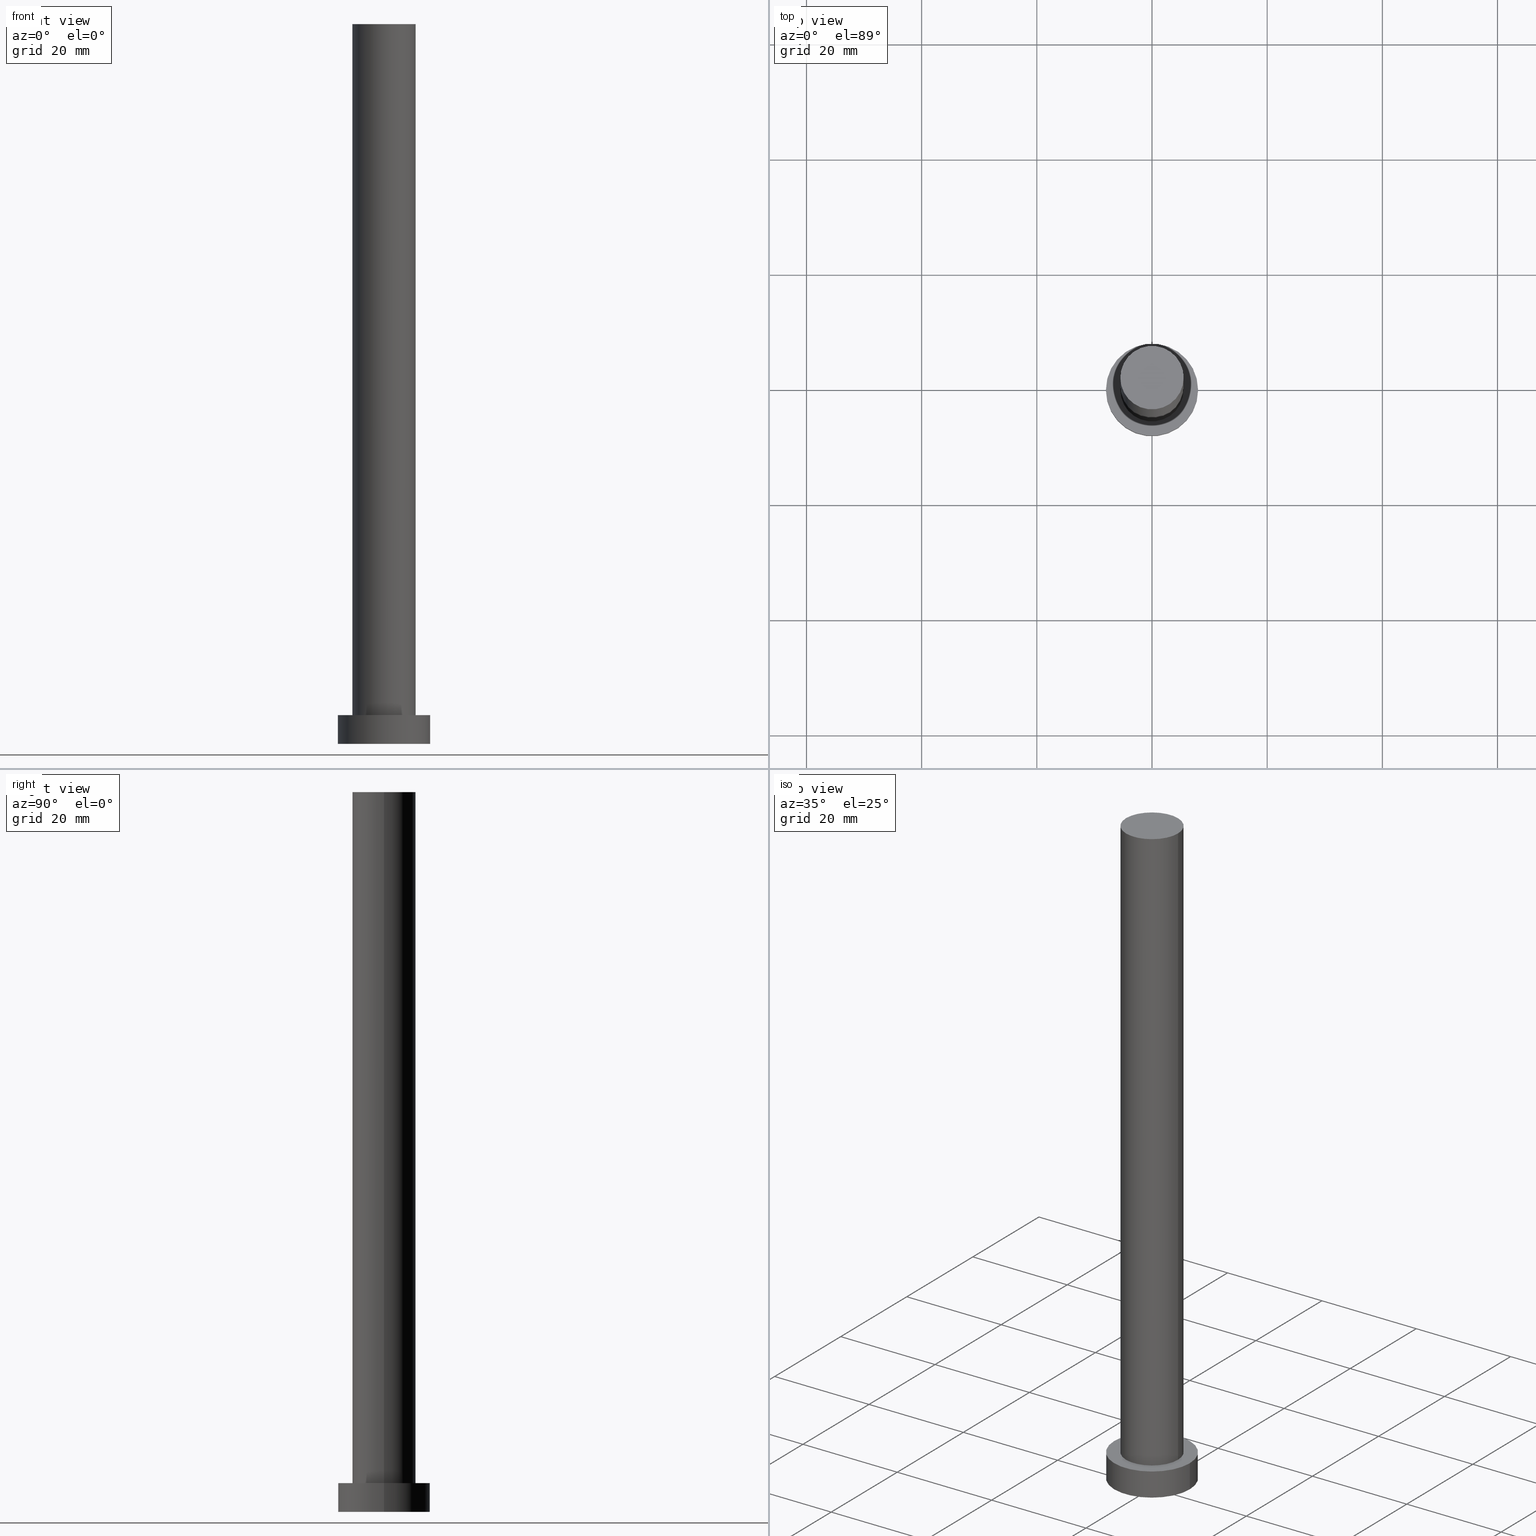
[diagram: canonical four-view strip — front | top / right | iso, engineering-drawing reading convention]
A machine part, canonical four-view strip (front | top / right | iso — engineering-drawing reading convention). The complete STEP part file that produces these views, byte-faithful:
ISO-10303-21;
HEADER;
FILE_DESCRIPTION (( 'STEP AP203' ),
    '1' );
FILE_NAME ('b8af.STEP',
    '2023-02-13T11:10:48',
    ( '' ),
    ( '' ),
    'SwSTEP 2.0',
    'SolidWorks 2019',
    '' );
FILE_SCHEMA (( 'CONFIG_CONTROL_DESIGN' ));
ENDSEC;

DATA;
#1 = DIRECTION ( 'NONE',  ( -0.000000000000000000, -0.000000000000000000, -1.000000000000000000 ) ) ;
#2 = PRODUCT_DEFINITION_SHAPE ( 'NONE', 'NONE',  #31 ) ;
#3 = EDGE_CURVE ( 'NONE', #204, #247, #64, .T. ) ;
#4 = VERTEX_POINT ( 'NONE', #14 ) ;
#5 = LOCAL_TIME ( 12, 10, 48.00000000000000000, #228 ) ;
#6 = PERSON_AND_ORGANIZATION ( #89, #128 ) ;
#7 = DIRECTION ( 'NONE',  ( 0.000000000000000000, 0.000000000000000000, 1.000000000000000000 ) ) ;
#8 = COORDINATED_UNIVERSAL_TIME_OFFSET ( 1, 0, .AHEAD. ) ;
#9 = CIRCLE ( 'NONE', #55, 8.000000000000000000 ) ;
#10 = APPROVAL_PERSON_ORGANIZATION ( #96, #163, #70 ) ;
#11 = EDGE_CURVE ( 'NONE', #83, #214, #109, .T. ) ;
#12 = CARTESIAN_POINT ( 'NONE',  ( -8.000000000000000000, 0.000000000000000000, 0.000000000000000000 ) ) ;
#13 = VERTEX_POINT ( 'NONE', #12 ) ;
#14 = CARTESIAN_POINT ( 'NONE',  ( 5.500000000000000000, 6.735557395310442023E-16, 125.0000000000000000 ) ) ;
#15 = DIRECTION ( 'NONE',  ( 1.000000000000000000, 0.000000000000000000, 0.000000000000000000 ) ) ;
#16 = ADVANCED_FACE ( 'NONE', ( #91 ), #52, .T. ) ;
#17 = DIRECTION ( 'NONE',  ( -0.000000000000000000, -0.000000000000000000, -1.000000000000000000 ) ) ;
#18 = AXIS2_PLACEMENT_3D ( 'NONE', #227, #7, #226 ) ;
#19 = EDGE_LOOP ( 'NONE', ( #187, #206, #189, #107 ) ) ;
#20 = CARTESIAN_POINT ( 'NONE',  ( 0.000000000000000000, 0.000000000000000000, 5.000000000000000000 ) ) ;
#21 =( LENGTH_UNIT ( ) NAMED_UNIT ( * ) SI_UNIT ( .MILLI., .METRE. ) );
#22 = FACE_BOUND ( 'NONE', #129, .T. ) ;
#23 = AXIS2_PLACEMENT_3D ( 'NONE', #112, #188, #38 ) ;
#24 = CC_DESIGN_DATE_AND_TIME_ASSIGNMENT ( #29, #201, ( #31 ) ) ;
#25 = ORIENTED_EDGE ( 'NONE', *, *, #118, .F. ) ;
#26 = PRODUCT ( 'b8af', 'b8af', '', ( #199 ) ) ;
#27 = DESIGN_CONTEXT ( 'detailed design', #134, 'design' ) ;
#28 = PERSON_AND_ORGANIZATION ( #89, #128 ) ;
#29 = DATE_AND_TIME ( #63, #179 ) ;
#30 = EDGE_CURVE ( 'NONE', #214, #140, #152, .T. ) ;
#31 = PRODUCT_DEFINITION ( 'NEZN�M�', '', #67, #27 ) ;
#32 = CARTESIAN_POINT ( 'NONE',  ( 0.000000000000000000, 0.000000000000000000, 5.000000000000000000 ) ) ;
#33 = CALENDAR_DATE ( 2023, 13, 2 ) ;
#34 = APPROVAL_DATE_TIME ( #127, #163 ) ;
#35 = ADVANCED_FACE ( 'NONE', ( #95 ), #92, .T. ) ;
#36 = CC_DESIGN_PERSON_AND_ORGANIZATION_ASSIGNMENT ( #238, #207, ( #67 ) ) ;
#37 = DIRECTION ( 'NONE',  ( -1.000000000000000000, 0.000000000000000000, 0.000000000000000000 ) ) ;
#38 = DIRECTION ( 'NONE',  ( 1.000000000000000000, 0.000000000000000000, -0.000000000000000000 ) ) ;
#39 = LOCAL_TIME ( 12, 10, 48.00000000000000000, #191 ) ;
#40 = DIRECTION ( 'NONE',  ( -1.000000000000000000, 0.000000000000000000, 0.000000000000000000 ) ) ;
#41 = DIRECTION ( 'NONE',  ( 1.000000000000000000, 0.000000000000000000, 0.000000000000000000 ) ) ;
#42 = CARTESIAN_POINT ( 'NONE',  ( 8.000000000000000000, 9.797174393178825657E-16, 5.000000000000000000 ) ) ;
#43 = ORIENTED_EDGE ( 'NONE', *, *, #80, .T. ) ;
#44 = PERSON_AND_ORGANIZATION ( #89, #128 ) ;
#45 = APPROVAL_STATUS ( 'not_yet_approved' ) ;
#46 = AXIS2_PLACEMENT_3D ( 'NONE', #250, #170, #171 ) ;
#47 = PERSON_AND_ORGANIZATION ( #89, #128 ) ;
#48 = CARTESIAN_POINT ( 'NONE',  ( -8.000000000000000000, 0.000000000000000000, 5.000000000000000000 ) ) ;
#49 = APPROVAL_DATE_TIME ( #178, #125 ) ;
#50 = ORIENTED_EDGE ( 'NONE', *, *, #181, .T. ) ;
#51 = DIRECTION ( 'NONE',  ( -0.000000000000000000, -0.000000000000000000, -1.000000000000000000 ) ) ;
#52 = CYLINDRICAL_SURFACE ( 'NONE', #168, 8.000000000000000000 ) ;
#53 = SHAPE_DEFINITION_REPRESENTATION ( #2, #218 ) ;
#54 = LOCAL_TIME ( 12, 10, 48.00000000000000000, #8 ) ;
#55 = AXIS2_PLACEMENT_3D ( 'NONE', #130, #254, #69 ) ;
#56 = CARTESIAN_POINT ( 'NONE',  ( 0.000000000000000000, 0.000000000000000000, 125.0000000000000000 ) ) ;
#57 =( NAMED_UNIT ( * ) PLANE_ANGLE_UNIT ( ) SI_UNIT ( $, .RADIAN. ) );
#58 = CARTESIAN_POINT ( 'NONE',  ( -5.500000000000000000, 0.000000000000000000, 125.0000000000000000 ) ) ;
#59 = CC_DESIGN_PERSON_AND_ORGANIZATION_ASSIGNMENT ( #84, #241, ( #136 ) ) ;
#60 = CYLINDRICAL_SURFACE ( 'NONE', #106, 5.500000000000000000 ) ;
#61 =( NAMED_UNIT ( * ) SI_UNIT ( $, .STERADIAN. ) SOLID_ANGLE_UNIT ( ) );
#62 = VECTOR ( 'NONE', #1, 1000.000000000000000 ) ;
#63 = CALENDAR_DATE ( 2023, 13, 2 ) ;
#64 = LINE ( 'NONE', #126, #210 ) ;
#65 = EDGE_CURVE ( 'NONE', #247, #13, #9, .T. ) ;
#66 = CARTESIAN_POINT ( 'NONE',  ( 0.000000000000000000, 0.000000000000000000, 5.000000000000000000 ) ) ;
#67 = PRODUCT_DEFINITION_FORMATION_WITH_SPECIFIED_SOURCE ( 'LIBOVOLN�', '', #26, .NOT_KNOWN. ) ;
#68 = CARTESIAN_POINT ( 'NONE',  ( 0.000000000000000000, 0.000000000000000000, 5.000000000000000000 ) ) ;
#69 = DIRECTION ( 'NONE',  ( 1.000000000000000000, 0.000000000000000000, 0.000000000000000000 ) ) ;
#70 = APPROVAL_ROLE ( '' ) ;
#71 = DIRECTION ( 'NONE',  ( 0.000000000000000000, 0.000000000000000000, 1.000000000000000000 ) ) ;
#72 = CARTESIAN_POINT ( 'NONE',  ( 8.000000000000000000, 9.797174393178825657E-16, 0.000000000000000000 ) ) ;
#73 = DIRECTION ( 'NONE',  ( -0.000000000000000000, -0.000000000000000000, -1.000000000000000000 ) ) ;
#74 = AXIS2_PLACEMENT_3D ( 'NONE', #194, #73, #37 ) ;
#75 = CARTESIAN_POINT ( 'NONE',  ( 0.000000000000000000, 0.000000000000000000, 125.0000000000000000 ) ) ;
#76 = CC_DESIGN_PERSON_AND_ORGANIZATION_ASSIGNMENT ( #141, #160, ( #26 ) ) ;
#77 = CARTESIAN_POINT ( 'NONE',  ( 0.000000000000000000, 0.000000000000000000, 0.000000000000000000 ) ) ;
#78 = ORIENTED_EDGE ( 'NONE', *, *, #193, .T. ) ;
#79 = DIRECTION ( 'NONE',  ( 0.000000000000000000, 0.000000000000000000, 1.000000000000000000 ) ) ;
#80 = EDGE_CURVE ( 'NONE', #204, #230, #203, .T. ) ;
#81 = ORIENTED_EDGE ( 'NONE', *, *, #118, .T. ) ;
#82 = ADVANCED_FACE ( 'NONE', ( #111 ), #231, .T. ) ;
#83 = VERTEX_POINT ( 'NONE', #58 ) ;
#84 = PERSON_AND_ORGANIZATION ( #89, #128 ) ;
#85 = ORIENTED_EDGE ( 'NONE', *, *, #193, .F. ) ;
#86 = APPLICATION_PROTOCOL_DEFINITION ( 'international standard', 'config_control_design', 1994, #122 ) ;
#87 = ORIENTED_EDGE ( 'NONE', *, *, #11, .F. ) ;
#88 = DATE_AND_TIME ( #159, #5 ) ;
#89 = PERSON ( 'NEUR�EN�', 'NEUR�EN�', 'NEUR�EN�', ('NEUR�EN�'), ('NEUR�EN�'), ('NEUR�EN�') ) ;
#90 = CALENDAR_DATE ( 2023, 13, 2 ) ;
#91 = FACE_OUTER_BOUND ( 'NONE', #19, .T. ) ;
#92 = PLANE ( 'NONE',  #46 ) ;
#93 = CC_DESIGN_DATE_AND_TIME_ASSIGNMENT ( #123, #213, ( #136 ) ) ;
#94 = ORIENTED_EDGE ( 'NONE', *, *, #192, .T. ) ;
#95 = FACE_OUTER_BOUND ( 'NONE', #239, .T. ) ;
#96 = PERSON_AND_ORGANIZATION ( #89, #128 ) ;
#97 = DIRECTION ( 'NONE',  ( 0.000000000000000000, 0.000000000000000000, 1.000000000000000000 ) ) ;
#98 = AXIS2_PLACEMENT_3D ( 'NONE', #20, #71, #155 ) ;
#99 = AXIS2_PLACEMENT_3D ( 'NONE', #75, #139, #41 ) ;
#100 = ORIENTED_EDGE ( 'NONE', *, *, #181, .F. ) ;
#101 = APPROVAL_ROLE ( '' ) ;
#102 = APPROVAL ( #45, 'NEUR�EN�' ) ;
#103 = COORDINATED_UNIVERSAL_TIME_OFFSET ( 1, 0, .AHEAD. ) ;
#104 = APPROVAL_PERSON_ORGANIZATION ( #28, #125, #101 ) ;
#105 = PERSON_AND_ORGANIZATION_ROLE ( 'design_supplier' ) ;
#106 = AXIS2_PLACEMENT_3D ( 'NONE', #235, #17, #154 ) ;
#107 = ORIENTED_EDGE ( 'NONE', *, *, #224, .F. ) ;
#108 = LOCAL_TIME ( 12, 10, 48.00000000000000000, #121 ) ;
#109 = LINE ( 'NONE', #190, #119 ) ;
#110 = ORIENTED_EDGE ( 'NONE', *, *, #11, .T. ) ;
#111 = FACE_OUTER_BOUND ( 'NONE', #120, .T. ) ;
#112 = CARTESIAN_POINT ( 'NONE',  ( 0.000000000000000000, 0.000000000000000000, 0.000000000000000000 ) ) ;
#113 = DIRECTION ( 'NONE',  ( -1.000000000000000000, 0.000000000000000000, 0.000000000000000000 ) ) ;
#114 = AXIS2_PLACEMENT_3D ( 'NONE', #77, #255, #116 ) ;
#115 = FACE_OUTER_BOUND ( 'NONE', #167, .T. ) ;
#116 = DIRECTION ( 'NONE',  ( 1.000000000000000000, 0.000000000000000000, 0.000000000000000000 ) ) ;
#117 = APPROVAL_PERSON_ORGANIZATION ( #44, #102, #246 ) ;
#118 = EDGE_CURVE ( 'NONE', #140, #214, #229, .T. ) ;
#119 = VECTOR ( 'NONE', #253, 1000.000000000000000 ) ;
#120 = EDGE_LOOP ( 'NONE', ( #242, #146, #169, #225 ) ) ;
#121 = COORDINATED_UNIVERSAL_TIME_OFFSET ( 1, 0, .AHEAD. ) ;
#122 = APPLICATION_CONTEXT ( 'configuration controlled 3d designs of mechanical parts and assemblies' ) ;
#123 = DATE_AND_TIME ( #90, #54 ) ;
#124 = AXIS2_PLACEMENT_3D ( 'NONE', #32, #150, #212 ) ;
#125 = APPROVAL ( #243, 'NEUR�EN�' ) ;
#126 = CARTESIAN_POINT ( 'NONE',  ( 8.000000000000000000, 9.797174393178825657E-16, 5.000000000000000000 ) ) ;
#127 = DATE_AND_TIME ( #33, #39 ) ;
#128 = ORGANIZATION ( 'NEUR�EN�', 'NEUR�EN�', '' ) ;
#129 = EDGE_LOOP ( 'NONE', ( #177, #25 ) ) ;
#130 = CARTESIAN_POINT ( 'NONE',  ( 0.000000000000000000, 0.000000000000000000, 0.000000000000000000 ) ) ;
#131 = ORIENTED_EDGE ( 'NONE', *, *, #30, .T. ) ;
#132 = EDGE_CURVE ( 'NONE', #13, #247, #173, .T. ) ;
#133 = EDGE_LOOP ( 'NONE', ( #100, #216, #110, #131 ) ) ;
#134 = APPLICATION_CONTEXT ( 'configuration controlled 3d designs of mechanical parts and assemblies' ) ;
#135 = AXIS2_PLACEMENT_3D ( 'NONE', #209, #220, #245 ) ;
#136 = SECURITY_CLASSIFICATION ( '', '', #183 ) ;
#137 = CARTESIAN_POINT ( 'NONE',  ( -5.500000000000000000, 0.000000000000000000, 5.000000000000000000 ) ) ;
#138 = DIRECTION ( 'NONE',  ( -0.000000000000000000, -0.000000000000000000, -1.000000000000000000 ) ) ;
#139 = DIRECTION ( 'NONE',  ( 0.000000000000000000, 0.000000000000000000, 1.000000000000000000 ) ) ;
#140 = VERTEX_POINT ( 'NONE', #195 ) ;
#141 = PERSON_AND_ORGANIZATION ( #89, #128 ) ;
#142 = APPLICATION_PROTOCOL_DEFINITION ( 'international standard', 'config_control_design', 1994, #134 ) ;
#143 = ADVANCED_FACE ( 'NONE', ( #22, #197 ), #174, .T. ) ;
#144 = CALENDAR_DATE ( 2023, 13, 2 ) ;
#145 = PLANE ( 'NONE',  #23 ) ;
#146 = ORIENTED_EDGE ( 'NONE', *, *, #222, .F. ) ;
#147 = APPROVAL_STATUS ( 'not_yet_approved' ) ;
#148 = CC_DESIGN_APPROVAL ( #102, ( #31 ) ) ;
#149 = ADVANCED_FACE ( 'NONE', ( #153 ), #234, .T. ) ;
#150 = DIRECTION ( 'NONE',  ( 0.000000000000000000, 0.000000000000000000, 1.000000000000000000 ) ) ;
#151 = AXIS2_PLACEMENT_3D ( 'NONE', #196, #97, #172 ) ;
#152 = CIRCLE ( 'NONE', #156, 5.500000000000000000 ) ;
#153 = FACE_OUTER_BOUND ( 'NONE', #252, .T. ) ;
#154 = DIRECTION ( 'NONE',  ( -1.000000000000000000, 0.000000000000000000, 0.000000000000000000 ) ) ;
#155 = DIRECTION ( 'NONE',  ( 1.000000000000000000, 0.000000000000000000, -0.000000000000000000 ) ) ;
#156 = AXIS2_PLACEMENT_3D ( 'NONE', #66, #217, #15 ) ;
#157 = CC_DESIGN_APPROVAL ( #125, ( #67 ) ) ;
#158 = FACE_OUTER_BOUND ( 'NONE', #133, .T. ) ;
#159 = CALENDAR_DATE ( 2023, 13, 2 ) ;
#160 = PERSON_AND_ORGANIZATION_ROLE ( 'design_owner' ) ;
#161 = MANIFOLD_SOLID_BREP ( 'P�idat vysunut�m3', #232 ) ;
#162 = LINE ( 'NONE', #182, #62 ) ;
#163 = APPROVAL ( #147, 'NEUR�EN�' ) ;
#164 = APPROVAL_DATE_TIME ( #88, #102 ) ;
#165 = ORIENTED_EDGE ( 'NONE', *, *, #65, .F. ) ;
#166 = DIRECTION ( 'NONE',  ( -0.000000000000000000, -0.000000000000000000, -1.000000000000000000 ) ) ;
#167 = EDGE_LOOP ( 'NONE', ( #240, #165 ) ) ;
#168 = AXIS2_PLACEMENT_3D ( 'NONE', #68, #51, #113 ) ;
#169 = ORIENTED_EDGE ( 'NONE', *, *, #224, .T. ) ;
#170 = DIRECTION ( 'NONE',  ( 0.000000000000000000, 0.000000000000000000, 1.000000000000000000 ) ) ;
#171 = DIRECTION ( 'NONE',  ( 1.000000000000000000, 0.000000000000000000, -0.000000000000000000 ) ) ;
#172 = DIRECTION ( 'NONE',  ( 1.000000000000000000, 0.000000000000000000, 0.000000000000000000 ) ) ;
#173 = CIRCLE ( 'NONE', #114, 8.000000000000000000 ) ;
#174 = PLANE ( 'NONE',  #98 ) ;
#175 = AXIS2_PLACEMENT_3D ( 'NONE', #56, #138, #40 ) ;
#176 = CARTESIAN_POINT ( 'NONE',  ( 0.000000000000000000, 0.000000000000000000, 125.0000000000000000 ) ) ;
#177 = ORIENTED_EDGE ( 'NONE', *, *, #30, .F. ) ;
#178 = DATE_AND_TIME ( #144, #108 ) ;
#179 = LOCAL_TIME ( 12, 10, 48.00000000000000000, #103 ) ;
#180 = CC_DESIGN_SECURITY_CLASSIFICATION ( #136, ( #67 ) ) ;
#181 = EDGE_CURVE ( 'NONE', #4, #140, #162, .T. ) ;
#182 = CARTESIAN_POINT ( 'NONE',  ( 5.500000000000000000, 6.735557395310442023E-16, 125.0000000000000000 ) ) ;
#183 = SECURITY_CLASSIFICATION_LEVEL ( 'unclassified' ) ;
#184 = VECTOR ( 'NONE', #166, 1000.000000000000000 ) ;
#185 = CC_DESIGN_PERSON_AND_ORGANIZATION_ASSIGNMENT ( #6, #105, ( #67 ) ) ;
#186 = CARTESIAN_POINT ( 'NONE',  ( -8.000000000000000000, 0.000000000000000000, 5.000000000000000000 ) ) ;
#187 = ORIENTED_EDGE ( 'NONE', *, *, #80, .F. ) ;
#188 = DIRECTION ( 'NONE',  ( 0.000000000000000000, 0.000000000000000000, 1.000000000000000000 ) ) ;
#189 = ORIENTED_EDGE ( 'NONE', *, *, #65, .T. ) ;
#190 = CARTESIAN_POINT ( 'NONE',  ( -5.500000000000000000, 0.000000000000000000, 125.0000000000000000 ) ) ;
#191 = COORDINATED_UNIVERSAL_TIME_OFFSET ( 1, 0, .AHEAD. ) ;
#192 = EDGE_CURVE ( 'NONE', #83, #4, #219, .T. ) ;
#193 = EDGE_CURVE ( 'NONE', #4, #83, #251, .T. ) ;
#194 = CARTESIAN_POINT ( 'NONE',  ( 0.000000000000000000, 0.000000000000000000, 5.000000000000000000 ) ) ;
#195 = CARTESIAN_POINT ( 'NONE',  ( 5.500000000000000000, 6.735557395310442023E-16, 5.000000000000000000 ) ) ;
#196 = CARTESIAN_POINT ( 'NONE',  ( 0.000000000000000000, 0.000000000000000000, 5.000000000000000000 ) ) ;
#197 = FACE_OUTER_BOUND ( 'NONE', #200, .T. ) ;
#198 = CC_DESIGN_APPROVAL ( #163, ( #136 ) ) ;
#199 = MECHANICAL_CONTEXT ( 'NONE', #122, 'mechanical' ) ;
#200 = EDGE_LOOP ( 'NONE', ( #215, #43 ) ) ;
#201 = DATE_TIME_ROLE ( 'creation_date' ) ;
#202 = UNCERTAINTY_MEASURE_WITH_UNIT (LENGTH_MEASURE( 1.000000000000000082E-05 ), #21, 'distance_accuracy_value', 'NONE');
#203 = CIRCLE ( 'NONE', #124, 8.000000000000000000 ) ;
#204 = VERTEX_POINT ( 'NONE', #42 ) ;
#205 = PERSON_AND_ORGANIZATION_ROLE ( 'creator' ) ;
#206 = ORIENTED_EDGE ( 'NONE', *, *, #3, .T. ) ;
#207 = PERSON_AND_ORGANIZATION_ROLE ( 'creator' ) ;
#208 = DIRECTION ( 'NONE',  ( -0.000000000000000000, -0.000000000000000000, -1.000000000000000000 ) ) ;
#209 = CARTESIAN_POINT ( 'NONE',  ( 0.000000000000000000, 0.000000000000000000, 5.000000000000000000 ) ) ;
#210 = VECTOR ( 'NONE', #208, 1000.000000000000000 ) ;
#211 = PRODUCT_RELATED_PRODUCT_CATEGORY ( 'detail', '', ( #26 ) ) ;
#212 = DIRECTION ( 'NONE',  ( 1.000000000000000000, 0.000000000000000000, 0.000000000000000000 ) ) ;
#213 = DATE_TIME_ROLE ( 'classification_date' ) ;
#214 = VERTEX_POINT ( 'NONE', #137 ) ;
#215 = ORIENTED_EDGE ( 'NONE', *, *, #222, .T. ) ;
#216 = ORIENTED_EDGE ( 'NONE', *, *, #192, .F. ) ;
#217 = DIRECTION ( 'NONE',  ( 0.000000000000000000, 0.000000000000000000, 1.000000000000000000 ) ) ;
#218 = ADVANCED_BREP_SHAPE_REPRESENTATION ( 'b8af', ( #161, #18 ), #237 ) ;
#219 = CIRCLE ( 'NONE', #99, 5.500000000000000000 ) ;
#220 = DIRECTION ( 'NONE',  ( 0.000000000000000000, 0.000000000000000000, 1.000000000000000000 ) ) ;
#221 = CC_DESIGN_PERSON_AND_ORGANIZATION_ASSIGNMENT ( #47, #205, ( #31 ) ) ;
#222 = EDGE_CURVE ( 'NONE', #230, #204, #244, .T. ) ;
#223 = AXIS2_PLACEMENT_3D ( 'NONE', #176, #79, #236 ) ;
#224 = EDGE_CURVE ( 'NONE', #230, #13, #249, .T. ) ;
#225 = ORIENTED_EDGE ( 'NONE', *, *, #132, .T. ) ;
#226 = DIRECTION ( 'NONE',  ( 1.000000000000000000, 0.000000000000000000, 0.000000000000000000 ) ) ;
#227 = CARTESIAN_POINT ( 'NONE',  ( 0.000000000000000000, 0.000000000000000000, 0.000000000000000000 ) ) ;
#228 = COORDINATED_UNIVERSAL_TIME_OFFSET ( 1, 0, .AHEAD. ) ;
#229 = CIRCLE ( 'NONE', #151, 5.500000000000000000 ) ;
#230 = VERTEX_POINT ( 'NONE', #48 ) ;
#231 = CYLINDRICAL_SURFACE ( 'NONE', #74, 8.000000000000000000 ) ;
#232 = CLOSED_SHELL ( 'NONE', ( #149, #16, #82, #143, #233, #248, #35 ) ) ;
#233 = ADVANCED_FACE ( 'NONE', ( #115 ), #145, .F. ) ;
#234 = CYLINDRICAL_SURFACE ( 'NONE', #175, 5.500000000000000000 ) ;
#235 = CARTESIAN_POINT ( 'NONE',  ( 0.000000000000000000, 0.000000000000000000, 125.0000000000000000 ) ) ;
#236 = DIRECTION ( 'NONE',  ( 1.000000000000000000, 0.000000000000000000, 0.000000000000000000 ) ) ;
#237 =( GEOMETRIC_REPRESENTATION_CONTEXT ( 3 ) GLOBAL_UNCERTAINTY_ASSIGNED_CONTEXT ( ( #202 ) ) GLOBAL_UNIT_ASSIGNED_CONTEXT ( ( #21, #57, #61 ) ) REPRESENTATION_CONTEXT ( 'NONE', 'WORKASPACE' ) );
#238 = PERSON_AND_ORGANIZATION ( #89, #128 ) ;
#239 = EDGE_LOOP ( 'NONE', ( #94, #78 ) ) ;
#240 = ORIENTED_EDGE ( 'NONE', *, *, #132, .F. ) ;
#241 = PERSON_AND_ORGANIZATION_ROLE ( 'classification_officer' ) ;
#242 = ORIENTED_EDGE ( 'NONE', *, *, #3, .F. ) ;
#243 = APPROVAL_STATUS ( 'not_yet_approved' ) ;
#244 = CIRCLE ( 'NONE', #135, 8.000000000000000000 ) ;
#245 = DIRECTION ( 'NONE',  ( 1.000000000000000000, 0.000000000000000000, 0.000000000000000000 ) ) ;
#246 = APPROVAL_ROLE ( '' ) ;
#247 = VERTEX_POINT ( 'NONE', #72 ) ;
#248 = ADVANCED_FACE ( 'NONE', ( #158 ), #60, .T. ) ;
#249 = LINE ( 'NONE', #186, #184 ) ;
#250 = CARTESIAN_POINT ( 'NONE',  ( 0.000000000000000000, 0.000000000000000000, 125.0000000000000000 ) ) ;
#251 = CIRCLE ( 'NONE', #223, 5.500000000000000000 ) ;
#252 = EDGE_LOOP ( 'NONE', ( #85, #50, #81, #87 ) ) ;
#253 = DIRECTION ( 'NONE',  ( -0.000000000000000000, -0.000000000000000000, -1.000000000000000000 ) ) ;
#254 = DIRECTION ( 'NONE',  ( 0.000000000000000000, 0.000000000000000000, 1.000000000000000000 ) ) ;
#255 = DIRECTION ( 'NONE',  ( 0.000000000000000000, 0.000000000000000000, 1.000000000000000000 ) ) ;
ENDSEC;
END-ISO-10303-21;
